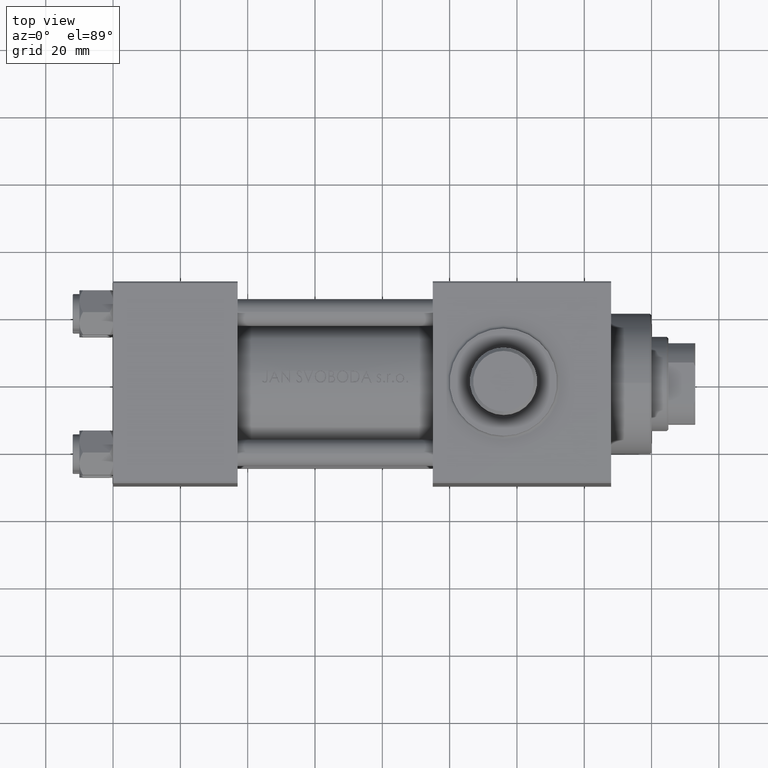
[diagram: clean part render]
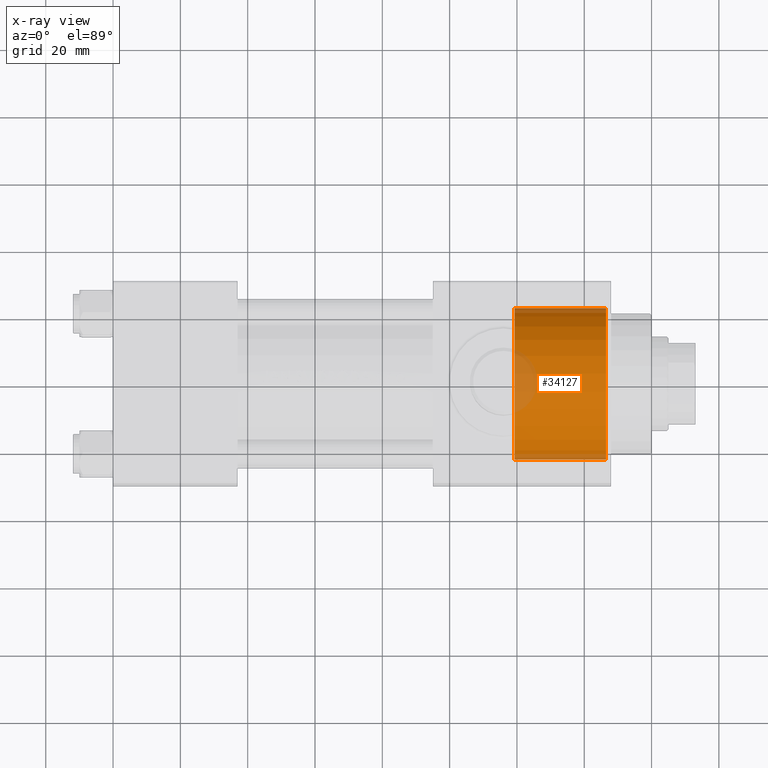
[diagram: x-ray — body ghosted, one internal face saturated and labeled with its STEP entity id]
A machine part, top view, then the same camera in x-ray: the body is ghosted and one INTERNAL B-rep face — a face not visible from any outside direction — is saturated and labeled: STEP entity #34127.
In plain terms, the highlighted cylindrical surface (partial cylindrical patch) has radius 22.5 mm, axis along (1, 0, 0).
Its self-contained STEP definition (entity closure, byte-faithful):
#34 = CARTESIAN_POINT ( 'NONE',  ( 119.2999999999999829, 2.755455298081545172E-15, 22.50000000000000355 ) ) ;
#2081 = EDGE_CURVE ( 'NONE', #31651, #18492, #22428, .T. ) ;
#4093 = ORIENTED_EDGE ( 'NONE', *, *, #9090, .F. ) ;
#4693 = EDGE_LOOP ( 'NONE', ( #39183, #11747, #12269, #4093 ) ) ;
#5227 = EDGE_CURVE ( 'NONE', #18492, #7217, #28302, .T. ) ;
#5573 = LINE ( 'NONE', #19612, #26087 ) ;
#7217 = VERTEX_POINT ( 'NONE', #10113 ) ;
#7399 = CARTESIAN_POINT ( 'NONE',  ( 146.5000000000000284, 0.000000000000000000, 0.000000000000000000 ) ) ;
#8749 = EDGE_CURVE ( 'NONE', #31651, #40798, #25274, .T. ) ;
#8853 = DIRECTION ( 'NONE',  ( 0.000000000000000000, 0.000000000000000000, -1.000000000000000000 ) ) ;
#9087 = CYLINDRICAL_SURFACE ( 'NONE', #15785, 22.50000000000000355 ) ;
#9090 = EDGE_CURVE ( 'NONE', #40798, #7217, #5573, .T. ) ;
#10113 = CARTESIAN_POINT ( 'NONE',  ( 146.5000000000000284, 0.000000000000000000, -22.50000000000000355 ) ) ;
#11743 = VECTOR ( 'NONE', #21558, 1000.000000000000000 ) ;
#11747 = ORIENTED_EDGE ( 'NONE', *, *, #2081, .T. ) ;
#12269 = ORIENTED_EDGE ( 'NONE', *, *, #5227, .T. ) ;
#14636 = DIRECTION ( 'NONE',  ( 1.000000000000000000, 0.000000000000000000, 0.000000000000000000 ) ) ;
#15785 = AXIS2_PLACEMENT_3D ( 'NONE', #19836, #15856, #8853 ) ;
#15856 = DIRECTION ( 'NONE',  ( 1.000000000000000000, -0.000000000000000000, -0.000000000000000000 ) ) ;
#18492 = VERTEX_POINT ( 'NONE', #31839 ) ;
#19612 = CARTESIAN_POINT ( 'NONE',  ( 119.2999999999999829, 0.000000000000000000, -22.50000000000000355 ) ) ;
#19836 = CARTESIAN_POINT ( 'NONE',  ( 119.2999999999999829, 0.000000000000000000, 0.000000000000000000 ) ) ;
#20595 = CARTESIAN_POINT ( 'NONE',  ( 119.2999999999999829, 0.000000000000000000, 0.000000000000000000 ) ) ;
#21274 = DIRECTION ( 'NONE',  ( 1.000000000000000000, 0.000000000000000000, 0.000000000000000000 ) ) ;
#21558 = DIRECTION ( 'NONE',  ( 1.000000000000000000, -0.000000000000000000, -0.000000000000000000 ) ) ;
#21566 = AXIS2_PLACEMENT_3D ( 'NONE', #20595, #21274, #34892 ) ;
#21671 = DIRECTION ( 'NONE',  ( 0.000000000000000000, 0.000000000000000000, 1.000000000000000000 ) ) ;
#22428 = LINE ( 'NONE', #34, #11743 ) ;
#22433 = CARTESIAN_POINT ( 'NONE',  ( 119.2999999999999829, 2.755455298081545172E-15, 22.50000000000000355 ) ) ;
#25274 = CIRCLE ( 'NONE', #21566, 22.50000000000000355 ) ;
#26087 = VECTOR ( 'NONE', #33914, 1000.000000000000000 ) ;
#28302 = CIRCLE ( 'NONE', #43273, 22.50000000000000355 ) ;
#30764 = CARTESIAN_POINT ( 'NONE',  ( 119.2999999999999829, 0.000000000000000000, -22.50000000000000355 ) ) ;
#31651 = VERTEX_POINT ( 'NONE', #22433 ) ;
#31839 = CARTESIAN_POINT ( 'NONE',  ( 146.5000000000000284, 2.755455298081545172E-15, 22.50000000000000355 ) ) ;
#33914 = DIRECTION ( 'NONE',  ( 1.000000000000000000, -0.000000000000000000, -0.000000000000000000 ) ) ;
#34127 = ADVANCED_FACE ( 'NONE', ( #43973 ), #9087, .F. ) ;
#34892 = DIRECTION ( 'NONE',  ( 0.000000000000000000, 0.000000000000000000, -1.000000000000000000 ) ) ;
#39183 = ORIENTED_EDGE ( 'NONE', *, *, #8749, .F. ) ;
#40798 = VERTEX_POINT ( 'NONE', #30764 ) ;
#43273 = AXIS2_PLACEMENT_3D ( 'NONE', #7399, #14636, #21671 ) ;
#43973 = FACE_OUTER_BOUND ( 'NONE', #4693, .T. ) ;